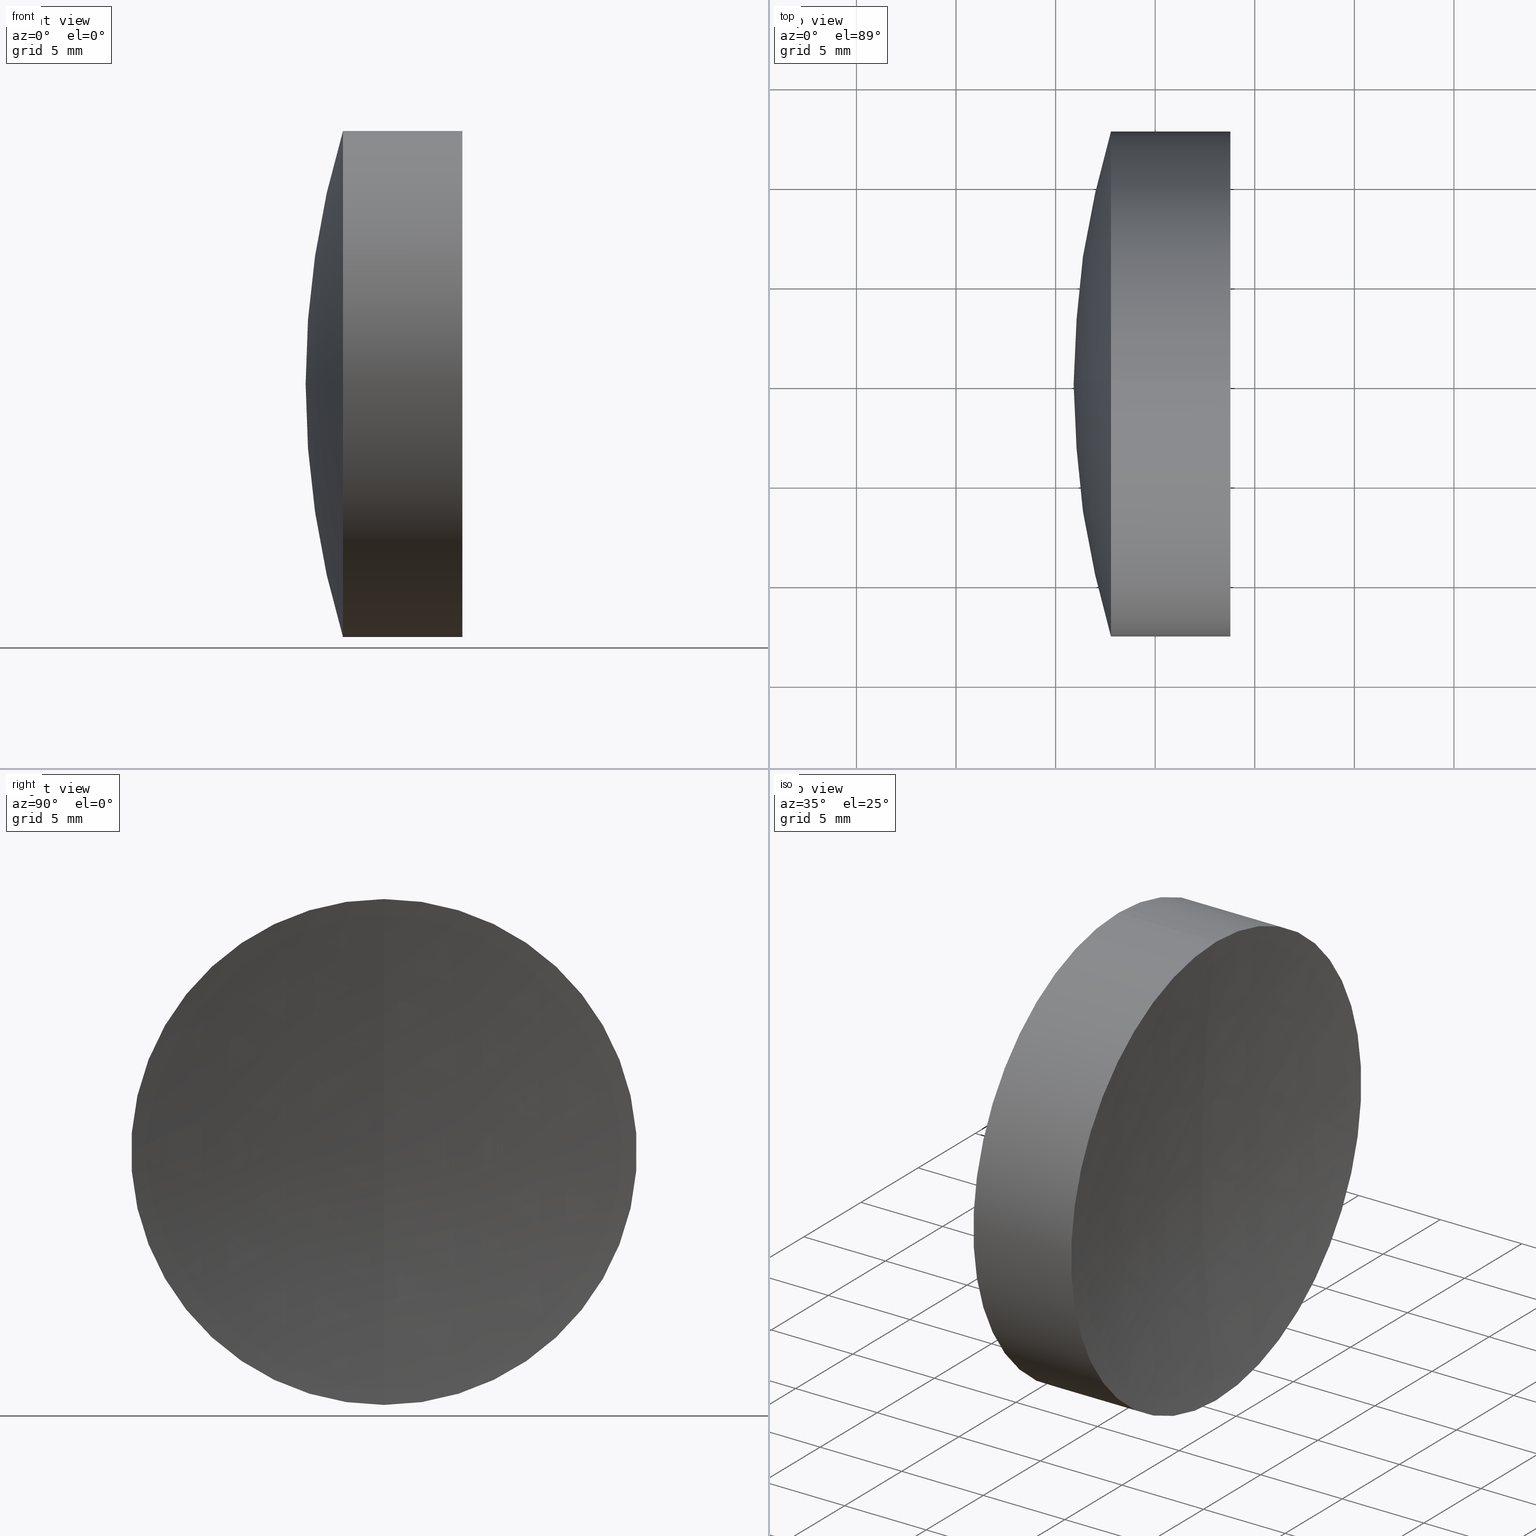
[diagram: canonical four-view strip — front | top / right | iso, engineering-drawing reading convention]
A machine part, canonical four-view strip (front | top / right | iso — engineering-drawing reading convention). The complete STEP part file that produces these views, byte-faithful:
ISO-10303-21;
HEADER;
FILE_DESCRIPTION (( 'STEP AP214' ),
    '1' );
FILE_NAME ('145169.STEP',
    '2019-06-11T07:51:58',
    ( 'user' ),
    ( '΢���й�' ),
    'SwSTEP 2.0',
    'SolidWorks 2016',
    '' );
FILE_SCHEMA (( 'AUTOMOTIVE_DESIGN' ));
ENDSEC;

DATA;
#1 = SPHERICAL_SURFACE ( 'NONE', #331, 57.68000000000023400 ) ;
#2 = CARTESIAN_POINT ( 'NONE',  ( 63.77435168679243600, 0.0000000000000000000, 0.0000000000000000000 ) ) ;
#3 = VERTEX_POINT ( 'NONE', #249 ) ;
#4 = ADVANCED_FACE ( 'NONE', ( #293 ), #150, .F. ) ;
#5 = DIRECTION ( 'NONE',  ( 0.0000000000000000000, 0.0000000000000000000, 1.000000000000000000 ) ) ;
#6 = CIRCLE ( 'NONE', #128, 12.69999999999999600 ) ;
#7 = DIRECTION ( 'NONE',  ( -1.000000000000000000, -0.0000000000000000000, -0.0000000000000000000 ) ) ;
#8 = CARTESIAN_POINT ( 'NONE',  ( 58.98864538849122100, 0.0000000000000000000, 12.69999999999999600 ) ) ;
#9 = EDGE_CURVE ( 'NONE', #119, #262, #71, .T. ) ;
#10 = MANIFOLD_SOLID_BREP ( '��ת2', #172 ) ;
#11 = CARTESIAN_POINT ( 'NONE',  ( 0.0000000000000000000, 0.0000000000000000000, 0.0000000000000000000 ) ) ;
#12 = EDGE_LOOP ( 'NONE', ( #24, #336, #222 ) ) ;
#13 = SURFACE_STYLE_USAGE ( .BOTH. , #344 ) ;
#14 = CARTESIAN_POINT ( 'NONE',  ( 156.0141592538076600, 0.0000000000000000000, 0.0000000000000000000 ) ) ;
#15 = VECTOR ( 'NONE', #161, 1000.000000000000000 ) ;
#16 = EDGE_CURVE ( 'NONE', #279, #267, #51, .T. ) ;
#17 = EDGE_LOOP ( 'NONE', ( #296, #268, #48, #234 ) ) ;
#18 = PRESENTATION_LAYER_ASSIGNMENT (  '', '', ( #72 ) ) ;
#19 = CARTESIAN_POINT ( 'NONE',  ( 99.85415925380742400, 0.0000000000000000000, 1.870129949146768500E-014 ) ) ;
#20 = ORIENTED_EDGE ( 'NONE', *, *, #256, .F. ) ;
#21 = CARTESIAN_POINT ( 'NONE',  ( 2.724159253807425500, 0.0000000000000000000, -3.657587758717472300E-014 ) ) ;
#22 = AXIS2_PLACEMENT_3D ( 'NONE', #324, #163, #144 ) ;
#23 = AXIS2_PLACEMENT_3D ( 'NONE', #21, #288, #176 ) ;
#24 = ORIENTED_EDGE ( 'NONE', *, *, #45, .F. ) ;
#25 = CARTESIAN_POINT ( 'NONE',  ( 58.98864538849122100, 0.0000000000000000000, 0.0000000000000000000 ) ) ;
#26 = DIRECTION ( 'NONE',  ( 0.0000000000000000000, 0.0000000000000000000, 1.000000000000000000 ) ) ;
#27 =( NAMED_UNIT ( * ) SI_UNIT ( $, .STERADIAN. ) SOLID_ANGLE_UNIT ( ) );
#28 = CARTESIAN_POINT ( 'NONE',  ( 99.85415925380742400, 0.0000000000000000000, 1.870129949146768500E-014 ) ) ;
#29 = ADVANCED_FACE ( 'NONE', ( #322 ), #190, .F. ) ;
#30 = DIRECTION ( 'NONE',  ( 0.0000000000000000000, -1.000000000000000000, -1.224646799147353200E-016 ) ) ;
#31 = FACE_OUTER_BOUND ( 'NONE', #311, .T. ) ;
#32 = FILL_AREA_STYLE_COLOUR ( '', #191 ) ;
#33 = DIRECTION ( 'NONE',  ( 0.0000000000000000000, -1.000000000000000000, -1.224646799147353200E-016 ) ) ;
#34 = ORIENTED_EDGE ( 'NONE', *, *, #140, .F. ) ;
#35 = DIRECTION ( 'NONE',  ( -0.0000000000000000000, -1.000000000000000000, -0.0000000000000000000 ) ) ;
#36 = DIRECTION ( 'NONE',  ( 0.0000000000000000000, -1.224646799147353000E-016, 1.000000000000000000 ) ) ;
#37 = VECTOR ( 'NONE', #209, 1000.000000000000000 ) ;
#38 = DIRECTION ( 'NONE',  ( 0.0000000000000000000, 0.0000000000000000000, -1.000000000000000000 ) ) ;
#39 = AXIS2_PLACEMENT_3D ( 'NONE', #169, #42, #304 ) ;
#40 = DIRECTION ( 'NONE',  ( -1.000000000000000000, -0.0000000000000000000, -0.0000000000000000000 ) ) ;
#41 = ORIENTED_EDGE ( 'NONE', *, *, #312, .F. ) ;
#42 = DIRECTION ( 'NONE',  ( -1.000000000000000000, -0.0000000000000000000, -0.0000000000000000000 ) ) ;
#43 = EDGE_LOOP ( 'NONE', ( #276, #301, #20 ) ) ;
#44 = AXIS2_PLACEMENT_3D ( 'NONE', #244, #81, #133 ) ;
#45 = EDGE_CURVE ( 'NONE', #230, #267, #308, .T. ) ;
#46 = AXIS2_PLACEMENT_3D ( 'NONE', #54, #91, #80 ) ;
#47 = SURFACE_STYLE_FILL_AREA ( #171 ) ;
#48 = ORIENTED_EDGE ( 'NONE', *, *, #9, .F. ) ;
#49 = PRODUCT ( '145169', '145169', '', ( #138 ) ) ;
#50 = EDGE_LOOP ( 'NONE', ( #225, #66, #243 ) ) ;
#51 = CIRCLE ( 'NONE', #100, 93.10999999999999900 ) ;
#52 = FACE_OUTER_BOUND ( 'NONE', #17, .T. ) ;
#53 = SURFACE_SIDE_STYLE ('',( #287 ) ) ;
#54 = CARTESIAN_POINT ( 'NONE',  ( 99.85415925380742400, 0.0000000000000000000, 1.870129949146768500E-014 ) ) ;
#55 = CIRCLE ( 'NONE', #196, 57.68000000000023400 ) ;
#56 = DIRECTION ( 'NONE',  ( 0.0000000000000000000, 0.0000000000000000000, -1.000000000000000000 ) ) ;
#57 = ADVANCED_FACE ( 'NONE', ( #242 ), #195, .T. ) ;
#58 =( GEOMETRIC_REPRESENTATION_CONTEXT ( 3 ) GLOBAL_UNCERTAINTY_ASSIGNED_CONTEXT ( ( #328 ) ) GLOBAL_UNIT_ASSIGNED_CONTEXT ( ( #199, #149, #123 ) ) REPRESENTATION_CONTEXT ( 'NONE', 'WORKASPACE' ) );
#59 = PRODUCT_RELATED_PRODUCT_CATEGORY ( 'part', '', ( #49 ) ) ;
#60 = VERTEX_POINT ( 'NONE', #136 ) ;
#61 = AXIS2_PLACEMENT_3D ( 'NONE', #182, #131, #36 ) ;
#62 = CARTESIAN_POINT ( 'NONE',  ( 2.724159253807425500, 0.0000000000000000000, -3.657587758717472300E-014 ) ) ;
#63 = AXIS2_PLACEMENT_3D ( 'NONE', #317, #157, #117 ) ;
#64 = CARTESIAN_POINT ( 'NONE',  ( 63.77435168679243600, 0.0000000000000000000, 0.0000000000000000000 ) ) ;
#65 = DIRECTION ( 'NONE',  ( 0.0000000000000000000, 0.0000000000000000000, -1.000000000000000000 ) ) ;
#66 = ORIENTED_EDGE ( 'NONE', *, *, #291, .T. ) ;
#67 = MECHANICAL_DESIGN_GEOMETRIC_PRESENTATION_REPRESENTATION (  '', ( #72 ), #258 ) ;
#68 = UNCERTAINTY_MEASURE_WITH_UNIT (LENGTH_MEASURE( 1.000000000000000100E-005 ), #320, 'distance_accuracy_value', 'NONE');
#69 = ORIENTED_EDGE ( 'NONE', *, *, #194, .T. ) ;
#70 = AXIS2_PLACEMENT_3D ( 'NONE', #160, #84, #77 ) ;
#71 = CIRCLE ( 'NONE', #39, 12.69999999999999400 ) ;
#72 = STYLED_ITEM ( 'NONE', ( #228 ), #218 ) ;
#73 = VERTEX_POINT ( 'NONE', #8 ) ;
#74 = DIRECTION ( 'NONE',  ( 0.0000000000000000000, 0.0000000000000000000, 1.000000000000000000 ) ) ;
#75 = ORIENTED_EDGE ( 'NONE', *, *, #9, .T. ) ;
#76 = AXIS2_PLACEMENT_3D ( 'NONE', #141, #263, #298 ) ;
#77 = DIRECTION ( 'NONE',  ( 0.0000000000000000000, -1.224646799147353000E-016, 1.000000000000000000 ) ) ;
#78 = AXIS2_PLACEMENT_3D ( 'NONE', #329, #33, #177 ) ;
#79 = CARTESIAN_POINT ( 'NONE',  ( 58.98864538849122900, 0.0000000000000000000, 0.0000000000000000000 ) ) ;
#80 = DIRECTION ( 'NONE',  ( 0.0000000000000000000, 0.0000000000000000000, 1.000000000000000000 ) ) ;
#81 = DIRECTION ( 'NONE',  ( -1.000000000000000000, -0.0000000000000000000, -0.0000000000000000000 ) ) ;
#82 = ORIENTED_EDGE ( 'NONE', *, *, #45, .T. ) ;
#83 = ADVANCED_FACE ( 'NONE', ( #125 ), #85, .T. ) ;
#84 = DIRECTION ( 'NONE',  ( -0.0000000000000000000, 1.000000000000000000, 1.224646799147353200E-016 ) ) ;
#85 = CYLINDRICAL_SURFACE ( 'NONE', #259, 12.69999999999999600 ) ;
#86 = EDGE_CURVE ( 'NONE', #230, #279, #185, .T. ) ;
#87 = ORIENTED_EDGE ( 'NONE', *, *, #291, .F. ) ;
#88 =( LENGTH_UNIT ( ) NAMED_UNIT ( * ) SI_UNIT ( .MILLI., .METRE. ) );
#89 = CARTESIAN_POINT ( 'NONE',  ( -0.8160621761658039000, 1.555301434917138000E-015, -12.69999999999999600 ) ) ;
#90 = CARTESIAN_POINT ( 'NONE',  ( 58.98864538849122900, 1.555301434917138800E-015, -12.70000000000004200 ) ) ;
#91 = DIRECTION ( 'NONE',  ( 0.0000000000000000000, 1.000000000000000000, -0.0000000000000000000 ) ) ;
#92 = CIRCLE ( 'NONE', #204, 12.70000000000004200 ) ;
#93 = AXIS2_PLACEMENT_3D ( 'NONE', #233, #224, #227 ) ;
#94 = VERTEX_POINT ( 'NONE', #325 ) ;
#95 = DIRECTION ( 'NONE',  ( 0.0000000000000000000, 1.000000000000000000, 0.0000000000000000000 ) ) ;
#96 = PRODUCT_DEFINITION_SHAPE ( 'NONE', 'NONE',  #315 ) ;
#97 = ORIENTED_EDGE ( 'NONE', *, *, #286, .T. ) ;
#98 = VERTEX_POINT ( 'NONE', #316 ) ;
#99 = AXIS2_PLACEMENT_3D ( 'NONE', #62, #95, #110 ) ;
#100 = AXIS2_PLACEMENT_3D ( 'NONE', #283, #170, #188 ) ;
#101 = ORIENTED_EDGE ( 'NONE', *, *, #286, .F. ) ;
#102 = COLOUR_RGB ( '',1.000000000000000000, 1.000000000000000000, 1.000000000000000000 ) ;
#103 = EDGE_LOOP ( 'NONE', ( #206, #109, #105 ) ) ;
#104 = AXIS2_PLACEMENT_3D ( 'NONE', #216, #323, #273 ) ;
#105 = ORIENTED_EDGE ( 'NONE', *, *, #184, .F. ) ;
#106 = MANIFOLD_SOLID_BREP ( '��ת1', #159 ) ;
#107 = CYLINDRICAL_SURFACE ( 'NONE', #22, 12.70000000000004200 ) ;
#108 = DIRECTION ( 'NONE',  ( 0.0000000000000000000, 0.0000000000000000000, -1.000000000000000000 ) ) ;
#109 = ORIENTED_EDGE ( 'NONE', *, *, #330, .T. ) ;
#110 = DIRECTION ( 'NONE',  ( 0.0000000000000000000, 0.0000000000000000000, 1.000000000000000000 ) ) ;
#111 = CARTESIAN_POINT ( 'NONE',  ( -0.8160621761658039000, 0.0000000000000000000, 12.69999999999999600 ) ) ;
#112 = DIRECTION ( 'NONE',  ( -1.000000000000000000, -0.0000000000000000000, -0.0000000000000000000 ) ) ;
#113 =( NAMED_UNIT ( * ) SI_UNIT ( $, .STERADIAN. ) SOLID_ANGLE_UNIT ( ) );
#114 = AXIS2_PLACEMENT_3D ( 'NONE', #167, #124, #108 ) ;
#115 = ORIENTED_EDGE ( 'NONE', *, *, #237, .F. ) ;
#116 = DIRECTION ( 'NONE',  ( -0.0000000000000000000, -1.000000000000000000, -0.0000000000000000000 ) ) ;
#117 = DIRECTION ( 'NONE',  ( 0.0000000000000000000, 0.0000000000000000000, -1.000000000000000000 ) ) ;
#118 = CIRCLE ( 'NONE', #44, 12.69999999999999600 ) ;
#119 = VERTEX_POINT ( 'NONE', #277 ) ;
#120 = AXIS2_PLACEMENT_3D ( 'NONE', #261, #326, #5 ) ;
#121 = FACE_OUTER_BOUND ( 'NONE', #174, .T. ) ;
#122 = CIRCLE ( 'NONE', #61, 57.68000000000023400 ) ;
#123 =( NAMED_UNIT ( * ) SI_UNIT ( $, .STERADIAN. ) SOLID_ANGLE_UNIT ( ) );
#124 = DIRECTION ( 'NONE',  ( -0.0000000000000000000, -1.000000000000000000, -0.0000000000000000000 ) ) ;
#125 = FACE_OUTER_BOUND ( 'NONE', #299, .T. ) ;
#126 = DIRECTION ( 'NONE',  ( 0.0000000000000000000, 0.0000000000000000000, 1.000000000000000000 ) ) ;
#127 = ORIENTED_EDGE ( 'NONE', *, *, #215, .F. ) ;
#128 = AXIS2_PLACEMENT_3D ( 'NONE', #25, #302, #197 ) ;
#129 = CARTESIAN_POINT ( 'NONE',  ( 63.77435168679243600, -1.555301434917144300E-015, 12.70000000000004700 ) ) ;
#130 = ADVANCED_FACE ( 'NONE', ( #337 ), #205, .T. ) ;
#131 = DIRECTION ( 'NONE',  ( -0.0000000000000000000, 1.000000000000000000, 1.224646799147353200E-016 ) ) ;
#132 = ORIENTED_EDGE ( 'NONE', *, *, #16, .F. ) ;
#133 = DIRECTION ( 'NONE',  ( 0.0000000000000000000, 0.0000000000000000000, 1.000000000000000000 ) ) ;
#134 = VERTEX_POINT ( 'NONE', #343 ) ;
#135 = DIRECTION ( 'NONE',  ( 0.0000000000000000000, 1.000000000000000000, 0.0000000000000000000 ) ) ;
#136 = CARTESIAN_POINT ( 'NONE',  ( 55.90415925380741400, 0.0000000000000000000, 1.601013815034137300E-014 ) ) ;
#137 = PRODUCT_DEFINITION_CONTEXT ( 'detailed design', #274, 'design' ) ;
#138 = PRODUCT_CONTEXT ( 'NONE', #278, 'mechanical' ) ;
#139 = UNCERTAINTY_MEASURE_WITH_UNIT (LENGTH_MEASURE( 1.000000000000000100E-005 ), #88, 'distance_accuracy_value', 'NONE');
#140 = EDGE_CURVE ( 'NONE', #262, #119, #154, .T. ) ;
#141 = CARTESIAN_POINT ( 'NONE',  ( -0.8160621761658039000, 0.0000000000000000000, 0.0000000000000000000 ) ) ;
#142 = DIRECTION ( 'NONE',  ( -1.000000000000000000, -0.0000000000000000000, -0.0000000000000000000 ) ) ;
#143 = EDGE_LOOP ( 'NONE', ( #87, #254, #178 ) ) ;
#144 = DIRECTION ( 'NONE',  ( 0.0000000000000000000, 0.0000000000000000000, 1.000000000000000000 ) ) ;
#145 = AXIS2_PLACEMENT_3D ( 'NONE', #305, #235, #173 ) ;
#146 = EDGE_CURVE ( 'NONE', #3, #262, #334, .T. ) ;
#147 = CARTESIAN_POINT ( 'NONE',  ( 99.85415925380742400, 0.0000000000000000000, 1.870129949146768500E-014 ) ) ;
#148 = PRESENTATION_LAYER_ASSIGNMENT (  '', '', ( #219 ) ) ;
#149 =( NAMED_UNIT ( * ) PLANE_ANGLE_UNIT ( ) SI_UNIT ( $, .RADIAN. ) );
#150 = SPHERICAL_SURFACE ( 'NONE', #275, 93.10999999999999900 ) ;
#151 = CYLINDRICAL_SURFACE ( 'NONE', #76, 12.69999999999999600 ) ;
#152 = CIRCLE ( 'NONE', #63, 57.68000000000023400 ) ;
#153 = AXIS2_PLACEMENT_3D ( 'NONE', #11, #26, #347 ) ;
#154 = CIRCLE ( 'NONE', #93, 12.69999999999999400 ) ;
#155 = CIRCLE ( 'NONE', #252, 43.95000000000000300 ) ;
#156 = APPLICATION_PROTOCOL_DEFINITION ( 'draft international standard', 'automotive_design', 1998, #274 ) ;
#157 = DIRECTION ( 'NONE',  ( 0.0000000000000000000, -1.000000000000000000, 0.0000000000000000000 ) ) ;
#158 = ADVANCED_FACE ( 'NONE', ( #309 ), #1, .T. ) ;
#159 = CLOSED_SHELL ( 'NONE', ( #158, #269, #57, #130, #83, #241 ) ) ;
#160 = CARTESIAN_POINT ( 'NONE',  ( 2.724159253807425500, 0.0000000000000000000, -3.657587758717472300E-014 ) ) ;
#161 = DIRECTION ( 'NONE',  ( -1.000000000000000000, -0.0000000000000000000, -0.0000000000000000000 ) ) ;
#162 = DIRECTION ( 'NONE',  ( 0.0000000000000000000, 0.0000000000000000000, 1.000000000000000000 ) ) ;
#163 = DIRECTION ( 'NONE',  ( -1.000000000000000000, -0.0000000000000000000, -0.0000000000000000000 ) ) ;
#164 = DIRECTION ( 'NONE',  ( 0.0000000000000000000, 0.0000000000000000000, 1.000000000000000000 ) ) ;
#165 = AXIS2_PLACEMENT_3D ( 'NONE', #79, #223, #126 ) ;
#166 = EDGE_CURVE ( 'NONE', #3, #73, #6, .T. ) ;
#167 = CARTESIAN_POINT ( 'NONE',  ( 156.0141592538076600, 0.0000000000000000000, 0.0000000000000000000 ) ) ;
#168 = EDGE_CURVE ( 'NONE', #134, #73, #152, .T. ) ;
#169 = CARTESIAN_POINT ( 'NONE',  ( 57.77907755454032200, 0.0000000000000000000, 0.0000000000000000000 ) ) ;
#170 = DIRECTION ( 'NONE',  ( 0.0000000000000000000, 1.000000000000000000, -0.0000000000000000000 ) ) ;
#171 = FILL_AREA_STYLE ('',( #310 ) ) ;
#172 = CLOSED_SHELL ( 'NONE', ( #297, #187, #29, #266, #4, #214 ) ) ;
#173 = DIRECTION ( 'NONE',  ( 0.0000000000000000000, 0.0000000000000000000, 1.000000000000000000 ) ) ;
#174 = EDGE_LOOP ( 'NONE', ( #260, #69, #97, #115 ) ) ;
#175 = EDGE_CURVE ( 'NONE', #73, #119, #285, .T. ) ;
#176 = DIRECTION ( 'NONE',  ( 0.0000000000000000000, 0.0000000000000000000, 1.000000000000000000 ) ) ;
#177 = DIRECTION ( 'NONE',  ( 0.0000000000000000000, 1.224646799147353200E-016, -1.000000000000000000 ) ) ;
#178 = ORIENTED_EDGE ( 'NONE', *, *, #237, .T. ) ;
#179 = EDGE_CURVE ( 'NONE', #279, #192, #335, .T. ) ;
#180 = CIRCLE ( 'NONE', #70, 57.68000000000023400 ) ;
#181 = ORIENTED_EDGE ( 'NONE', *, *, #330, .F. ) ;
#182 = CARTESIAN_POINT ( 'NONE',  ( 2.724159253807425500, 0.0000000000000000000, -3.657587758717472300E-014 ) ) ;
#183 = CIRCLE ( 'NONE', #145, 12.70000000000004200 ) ;
#184 = EDGE_CURVE ( 'NONE', #262, #60, #340, .T. ) ;
#185 = CIRCLE ( 'NONE', #318, 12.70000000000004200 ) ;
#186 = SURFACE_SIDE_STYLE ('',( #265 ) ) ;
#187 = ADVANCED_FACE ( 'NONE', ( #264 ), #236, .F. ) ;
#188 = DIRECTION ( 'NONE',  ( 0.0000000000000000000, 0.0000000000000000000, 1.000000000000000000 ) ) ;
#189 = DIRECTION ( 'NONE',  ( 0.0000000000000000000, 0.0000000000000000000, 1.000000000000000000 ) ) ;
#190 = SPHERICAL_SURFACE ( 'NONE', #23, 57.68000000000023400 ) ;
#191 = COLOUR_RGB ( '',1.000000000000000000, 1.000000000000000000, 1.000000000000000000 ) ;
#192 = VERTEX_POINT ( 'NONE', #90 ) ;
#193 = DIRECTION ( 'NONE',  ( -1.000000000000000000, -0.0000000000000000000, -0.0000000000000000000 ) ) ;
#194 = EDGE_CURVE ( 'NONE', #279, #230, #92, .T. ) ;
#195 = SPHERICAL_SURFACE ( 'NONE', #246, 43.95000000000000300 ) ;
#196 = AXIS2_PLACEMENT_3D ( 'NONE', #319, #271, #56 ) ;
#197 = DIRECTION ( 'NONE',  ( 0.0000000000000000000, 0.0000000000000000000, 1.000000000000000000 ) ) ;
#198 = ORIENTED_EDGE ( 'NONE', *, *, #179, .T. ) ;
#199 =( LENGTH_UNIT ( ) NAMED_UNIT ( * ) SI_UNIT ( .MILLI., .METRE. ) );
#200 = PRESENTATION_STYLE_ASSIGNMENT (( #248 ) ) ;
#201 = UNCERTAINTY_MEASURE_WITH_UNIT (LENGTH_MEASURE( 1.000000000000000100E-005 ), #333, 'distance_accuracy_value', 'NONE');
#202 = SPHERICAL_SURFACE ( 'NONE', #120, 57.68000000000023400 ) ;
#203 = EDGE_CURVE ( 'NONE', #94, #192, #180, .T. ) ;
#204 = AXIS2_PLACEMENT_3D ( 'NONE', #2, #112, #74 ) ;
#205 = SPHERICAL_SURFACE ( 'NONE', #314, 43.95000000000000300 ) ;
#206 = ORIENTED_EDGE ( 'NONE', *, *, #140, .T. ) ;
#207 = ORIENTED_EDGE ( 'NONE', *, *, #86, .T. ) ;
#208 = CARTESIAN_POINT ( 'NONE',  ( 2.724159253807425500, 0.0000000000000000000, -3.657587758717472300E-014 ) ) ;
#209 = DIRECTION ( 'NONE',  ( -1.000000000000000000, -0.0000000000000000000, -0.0000000000000000000 ) ) ;
#210 = CARTESIAN_POINT ( 'NONE',  ( 63.77435168679243600, 0.0000000000000000000, -12.70000000000004700 ) ) ;
#211 = CARTESIAN_POINT ( 'NONE',  ( 57.77907755454032900, 0.0000000000000000000, -12.69999999999997600 ) ) ;
#212 =( NAMED_UNIT ( * ) SI_UNIT ( $, .STERADIAN. ) SOLID_ANGLE_UNIT ( ) );
#213 = CIRCLE ( 'NONE', #165, 12.70000000000004200 ) ;
#214 = ADVANCED_FACE ( 'NONE', ( #121 ), #107, .T. ) ;
#215 = EDGE_CURVE ( 'NONE', #98, #192, #183, .T. ) ;
#216 = CARTESIAN_POINT ( 'NONE',  ( -0.5519199926577972300, 0.0000000000000000000, 0.0000000000000000000 ) ) ;
#217 = CARTESIAN_POINT ( 'NONE',  ( -0.8160621761658039000, 0.0000000000000000000, 0.0000000000000000000 ) ) ;
#218 = ADVANCED_BREP_SHAPE_REPRESENTATION ( '145169', ( #106, #10, #153 ), #226 ) ;
#219 = STYLED_ITEM ( 'NONE', ( #200 ), #10 ) ;
#220 = ORIENTED_EDGE ( 'NONE', *, *, #175, .T. ) ;
#221 = LINE ( 'NONE', #239, #37 ) ;
#222 = ORIENTED_EDGE ( 'NONE', *, *, #16, .T. ) ;
#223 = DIRECTION ( 'NONE',  ( -1.000000000000000000, -0.0000000000000000000, -0.0000000000000000000 ) ) ;
#224 = DIRECTION ( 'NONE',  ( -1.000000000000000000, -0.0000000000000000000, -0.0000000000000000000 ) ) ;
#225 = ORIENTED_EDGE ( 'NONE', *, *, #203, .F. ) ;
#226 =( GEOMETRIC_REPRESENTATION_CONTEXT ( 3 ) GLOBAL_UNCERTAINTY_ASSIGNED_CONTEXT ( ( #201 ) ) GLOBAL_UNIT_ASSIGNED_CONTEXT ( ( #333, #294, #212 ) ) REPRESENTATION_CONTEXT ( 'NONE', 'WORKASPACE' ) );
#227 = DIRECTION ( 'NONE',  ( 0.0000000000000000000, 0.0000000000000000000, 1.000000000000000000 ) ) ;
#228 = PRESENTATION_STYLE_ASSIGNMENT (( #295 ) ) ;
#229 = ORIENTED_EDGE ( 'NONE', *, *, #168, .T. ) ;
#230 = VERTEX_POINT ( 'NONE', #129 ) ;
#231 = EDGE_LOOP ( 'NONE', ( #207, #198, #127, #101 ) ) ;
#232 = ORIENTED_EDGE ( 'NONE', *, *, #166, .F. ) ;
#233 = CARTESIAN_POINT ( 'NONE',  ( 57.77907755454032200, 0.0000000000000000000, 0.0000000000000000000 ) ) ;
#234 = ORIENTED_EDGE ( 'NONE', *, *, #175, .F. ) ;
#235 = DIRECTION ( 'NONE',  ( -1.000000000000000000, -0.0000000000000000000, -0.0000000000000000000 ) ) ;
#236 = SPHERICAL_SURFACE ( 'NONE', #114, 93.10999999999999900 ) ;
#237 = EDGE_CURVE ( 'NONE', #192, #98, #213, .T. ) ;
#238 = ORIENTED_EDGE ( 'NONE', *, *, #184, .T. ) ;
#239 = CARTESIAN_POINT ( 'NONE',  ( -0.5519199926577972300, 0.0000000000000000000, 12.70000000000004200 ) ) ;
#240 = CARTESIAN_POINT ( 'NONE',  ( 62.90415925380765600, 0.0000000000000000000, -5.701343173430502700E-015 ) ) ;
#241 = ADVANCED_FACE ( 'NONE', ( #31 ), #202, .T. ) ;
#242 = FACE_OUTER_BOUND ( 'NONE', #103, .T. ) ;
#243 = ORIENTED_EDGE ( 'NONE', *, *, #215, .T. ) ;
#244 = CARTESIAN_POINT ( 'NONE',  ( 58.98864538849122100, 0.0000000000000000000, 0.0000000000000000000 ) ) ;
#245 = PRODUCT_DEFINITION_FORMATION_WITH_SPECIFIED_SOURCE ( '�κ�', '', #49, .NOT_KNOWN. ) ;
#246 = AXIS2_PLACEMENT_3D ( 'NONE', #19, #35, #65 ) ;
#247 = EDGE_LOOP ( 'NONE', ( #181, #75, #238 ) ) ;
#248 = SURFACE_STYLE_USAGE ( .BOTH. , #53 ) ;
#249 = CARTESIAN_POINT ( 'NONE',  ( 58.98864538849122100, 1.555301434917138000E-015, -12.69999999999999600 ) ) ;
#250 = CYLINDRICAL_SURFACE ( 'NONE', #104, 12.70000000000004200 ) ;
#251 = DIRECTION ( 'NONE',  ( 0.0000000000000000000, 1.224646799147353200E-016, -1.000000000000000000 ) ) ;
#252 = AXIS2_PLACEMENT_3D ( 'NONE', #28, #30, #251 ) ;
#253 = FILL_AREA_STYLE ('',( #255 ) ) ;
#254 = ORIENTED_EDGE ( 'NONE', *, *, #203, .T. ) ;
#255 = FILL_AREA_STYLE_COLOUR ( '', #321 ) ;
#256 = EDGE_CURVE ( 'NONE', #73, #3, #118, .T. ) ;
#257 = MECHANICAL_DESIGN_GEOMETRIC_PRESENTATION_REPRESENTATION (  '', ( #219 ), #58 ) ;
#258 =( GEOMETRIC_REPRESENTATION_CONTEXT ( 3 ) GLOBAL_UNCERTAINTY_ASSIGNED_CONTEXT ( ( #68 ) ) GLOBAL_UNIT_ASSIGNED_CONTEXT ( ( #320, #346, #27 ) ) REPRESENTATION_CONTEXT ( 'NONE', 'WORKASPACE' ) );
#259 = AXIS2_PLACEMENT_3D ( 'NONE', #217, #193, #164 ) ;
#260 = ORIENTED_EDGE ( 'NONE', *, *, #179, .F. ) ;
#261 = CARTESIAN_POINT ( 'NONE',  ( 2.724159253807425500, 0.0000000000000000000, -3.657587758717472300E-014 ) ) ;
#262 = VERTEX_POINT ( 'NONE', #211 ) ;
#263 = DIRECTION ( 'NONE',  ( -1.000000000000000000, -0.0000000000000000000, -0.0000000000000000000 ) ) ;
#264 = FACE_OUTER_BOUND ( 'NONE', #332, .T. ) ;
#265 = SURFACE_STYLE_FILL_AREA ( #290 ) ;
#266 = ADVANCED_FACE ( 'NONE', ( #313 ), #327, .F. ) ;
#267 = VERTEX_POINT ( 'NONE', #240 ) ;
#268 = ORIENTED_EDGE ( 'NONE', *, *, #146, .T. ) ;
#269 = ADVANCED_FACE ( 'NONE', ( #52 ), #151, .T. ) ;
#270 = ORIENTED_EDGE ( 'NONE', *, *, #146, .F. ) ;
#271 = DIRECTION ( 'NONE',  ( 0.0000000000000000000, -1.000000000000000000, 0.0000000000000000000 ) ) ;
#272 = VECTOR ( 'NONE', #7, 1000.000000000000000 ) ;
#273 = DIRECTION ( 'NONE',  ( 0.0000000000000000000, 0.0000000000000000000, 1.000000000000000000 ) ) ;
#274 = APPLICATION_CONTEXT ( 'automotive_design' ) ;
#275 = AXIS2_PLACEMENT_3D ( 'NONE', #14, #116, #38 ) ;
#276 = ORIENTED_EDGE ( 'NONE', *, *, #168, .F. ) ;
#277 = CARTESIAN_POINT ( 'NONE',  ( 57.77907755454032900, -1.555301434917135900E-015, 12.69999999999999600 ) ) ;
#278 = APPLICATION_CONTEXT ( 'automotive_design' ) ;
#279 = VERTEX_POINT ( 'NONE', #210 ) ;
#280 = DIRECTION ( 'NONE',  ( 0.0000000000000000000, 0.0000000000000000000, -1.000000000000000000 ) ) ;
#281 = CARTESIAN_POINT ( 'NONE',  ( -0.5519199926577972300, 1.555301434917143600E-015, -12.70000000000004200 ) ) ;
#282 = PRESENTATION_STYLE_ASSIGNMENT (( #13 ) ) ;
#283 = CARTESIAN_POINT ( 'NONE',  ( 156.0141592538076600, 0.0000000000000000000, 0.0000000000000000000 ) ) ;
#284 = PRESENTATION_LAYER_ASSIGNMENT (  '', '', ( #300 ) ) ;
#285 = LINE ( 'NONE', #111, #15 ) ;
#286 = EDGE_CURVE ( 'NONE', #230, #98, #221, .T. ) ;
#287 = SURFACE_STYLE_FILL_AREA ( #253 ) ;
#288 = DIRECTION ( 'NONE',  ( 0.0000000000000000000, 1.000000000000000000, 0.0000000000000000000 ) ) ;
#289 = APPLICATION_PROTOCOL_DEFINITION ( 'draft international standard', 'automotive_design', 1998, #278 ) ;
#290 = FILL_AREA_STYLE ('',( #32 ) ) ;
#291 = EDGE_CURVE ( 'NONE', #94, #98, #55, .T. ) ;
#292 =( GEOMETRIC_REPRESENTATION_CONTEXT ( 3 ) GLOBAL_UNCERTAINTY_ASSIGNED_CONTEXT ( ( #139 ) ) GLOBAL_UNIT_ASSIGNED_CONTEXT ( ( #88, #339, #113 ) ) REPRESENTATION_CONTEXT ( 'NONE', 'WORKASPACE' ) );
#293 = FACE_OUTER_BOUND ( 'NONE', #12, .T. ) ;
#294 =( NAMED_UNIT ( * ) PLANE_ANGLE_UNIT ( ) SI_UNIT ( $, .RADIAN. ) );
#295 = SURFACE_STYLE_USAGE ( .BOTH. , #186 ) ;
#296 = ORIENTED_EDGE ( 'NONE', *, *, #256, .T. ) ;
#297 = ADVANCED_FACE ( 'NONE', ( #342 ), #250, .T. ) ;
#298 = DIRECTION ( 'NONE',  ( 0.0000000000000000000, 0.0000000000000000000, 1.000000000000000000 ) ) ;
#299 = EDGE_LOOP ( 'NONE', ( #270, #345, #220, #34 ) ) ;
#300 = STYLED_ITEM ( 'NONE', ( #282 ), #106 ) ;
#301 = ORIENTED_EDGE ( 'NONE', *, *, #312, .T. ) ;
#302 = DIRECTION ( 'NONE',  ( -1.000000000000000000, -0.0000000000000000000, -0.0000000000000000000 ) ) ;
#303 = VECTOR ( 'NONE', #40, 1000.000000000000000 ) ;
#304 = DIRECTION ( 'NONE',  ( 0.0000000000000000000, 0.0000000000000000000, 1.000000000000000000 ) ) ;
#305 = CARTESIAN_POINT ( 'NONE',  ( 58.98864538849122900, 0.0000000000000000000, 0.0000000000000000000 ) ) ;
#306 = DIRECTION ( 'NONE',  ( -0.0000000000000000000, -1.000000000000000000, -0.0000000000000000000 ) ) ;
#307 = ORIENTED_EDGE ( 'NONE', *, *, #86, .F. ) ;
#308 = CIRCLE ( 'NONE', #78, 93.10999999999999900 ) ;
#309 = FACE_OUTER_BOUND ( 'NONE', #43, .T. ) ;
#310 = FILL_AREA_STYLE_COLOUR ( '', #102 ) ;
#311 = EDGE_LOOP ( 'NONE', ( #41, #229, #232 ) ) ;
#312 = EDGE_CURVE ( 'NONE', #134, #3, #122, .T. ) ;
#313 = FACE_OUTER_BOUND ( 'NONE', #50, .T. ) ;
#314 = AXIS2_PLACEMENT_3D ( 'NONE', #147, #306, #280 ) ;
#315 = PRODUCT_DEFINITION ( 'δ֪', '', #245, #137 ) ;
#316 = CARTESIAN_POINT ( 'NONE',  ( 58.98864538849122900, 0.0000000000000000000, 12.70000000000000500 ) ) ;
#317 = CARTESIAN_POINT ( 'NONE',  ( 2.724159253807425500, 0.0000000000000000000, -3.657587758717472300E-014 ) ) ;
#318 = AXIS2_PLACEMENT_3D ( 'NONE', #64, #142, #189 ) ;
#319 = CARTESIAN_POINT ( 'NONE',  ( 2.724159253807425500, 0.0000000000000000000, -3.657587758717472300E-014 ) ) ;
#320 =( LENGTH_UNIT ( ) NAMED_UNIT ( * ) SI_UNIT ( .MILLI., .METRE. ) );
#321 = COLOUR_RGB ( '',1.000000000000000000, 1.000000000000000000, 1.000000000000000000 ) ;
#322 = FACE_OUTER_BOUND ( 'NONE', #143, .T. ) ;
#323 = DIRECTION ( 'NONE',  ( -1.000000000000000000, -0.0000000000000000000, -0.0000000000000000000 ) ) ;
#324 = CARTESIAN_POINT ( 'NONE',  ( -0.5519199926577972300, 0.0000000000000000000, 0.0000000000000000000 ) ) ;
#325 = CARTESIAN_POINT ( 'NONE',  ( 60.40415925380765600, 0.0000000000000000000, -3.304399621843373900E-014 ) ) ;
#326 = DIRECTION ( 'NONE',  ( 0.0000000000000000000, 1.000000000000000000, 0.0000000000000000000 ) ) ;
#327 = SPHERICAL_SURFACE ( 'NONE', #99, 57.68000000000023400 ) ;
#328 = UNCERTAINTY_MEASURE_WITH_UNIT (LENGTH_MEASURE( 1.000000000000000100E-005 ), #199, 'distance_accuracy_value', 'NONE');
#329 = CARTESIAN_POINT ( 'NONE',  ( 156.0141592538076600, 0.0000000000000000000, 0.0000000000000000000 ) ) ;
#330 = EDGE_CURVE ( 'NONE', #119, #60, #155, .T. ) ;
#331 = AXIS2_PLACEMENT_3D ( 'NONE', #208, #135, #162 ) ;
#332 = EDGE_LOOP ( 'NONE', ( #307, #82, #132 ) ) ;
#333 =( LENGTH_UNIT ( ) NAMED_UNIT ( * ) SI_UNIT ( .MILLI., .METRE. ) );
#334 = LINE ( 'NONE', #89, #272 ) ;
#335 = LINE ( 'NONE', #281, #303 ) ;
#336 = ORIENTED_EDGE ( 'NONE', *, *, #194, .F. ) ;
#337 = FACE_OUTER_BOUND ( 'NONE', #247, .T. ) ;
#338 = MECHANICAL_DESIGN_GEOMETRIC_PRESENTATION_REPRESENTATION (  '', ( #300 ), #292 ) ;
#339 =( NAMED_UNIT ( * ) PLANE_ANGLE_UNIT ( ) SI_UNIT ( $, .RADIAN. ) );
#340 = CIRCLE ( 'NONE', #46, 43.95000000000000300 ) ;
#341 = SHAPE_DEFINITION_REPRESENTATION ( #96, #218 ) ;
#342 = FACE_OUTER_BOUND ( 'NONE', #231, .T. ) ;
#343 = CARTESIAN_POINT ( 'NONE',  ( 60.40415925380765600, 0.0000000000000000000, -3.304399621843373900E-014 ) ) ;
#344 = SURFACE_SIDE_STYLE ('',( #47 ) ) ;
#345 = ORIENTED_EDGE ( 'NONE', *, *, #166, .T. ) ;
#346 =( NAMED_UNIT ( * ) PLANE_ANGLE_UNIT ( ) SI_UNIT ( $, .RADIAN. ) );
#347 = DIRECTION ( 'NONE',  ( 1.000000000000000000, 0.0000000000000000000, 0.0000000000000000000 ) ) ;
ENDSEC;
END-ISO-10303-21;
